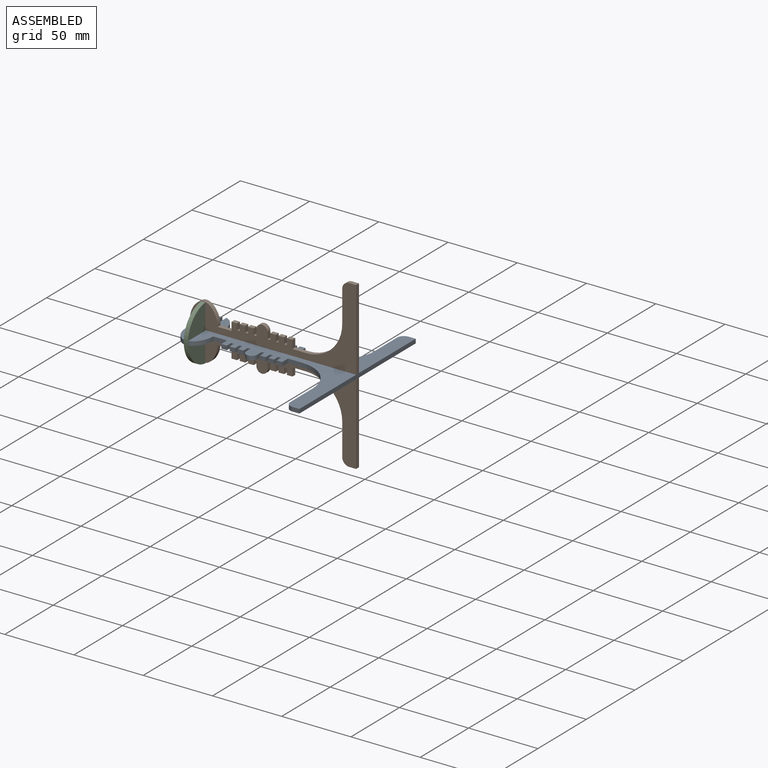
[diagram: assembled view]
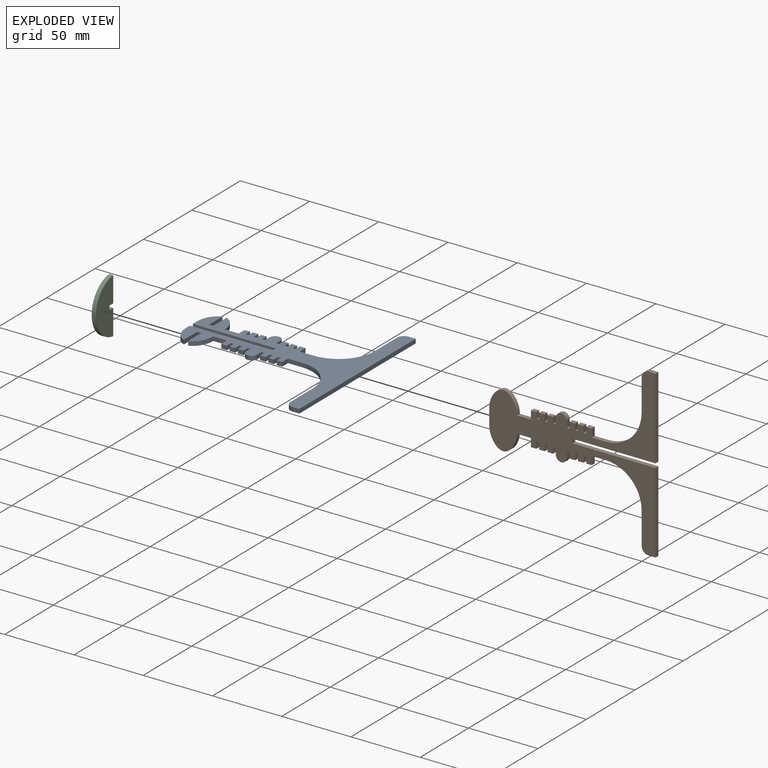
[diagram: exploded view]
GUIDED TOUR — MATED ASSEMBLY (Onshape document 8b54ce2afa1335f99e919482, AutoMate assembly 8b54ce2afa1335f99e919482_64a6fa9629a2439daae8d255_8fee52d90123e2ce2c0761cc_default)

This assembly has 3 components, labeled P0..P2 below (a component is one placed occurrence of a part; the same part can appear more than once), held together by 6 mates. A mate is a constraint between two components; its type names the relative motion it leaves free:
  PLANAR — leaves sliding in the plane through the listed point (normal = the listed direction) and rotation about that normal free.
Axis/direction vectors are unit vectors and 'through' points are millimeter coordinates, both in the assembly's world frame.

MATES
  1. PLANAR "Planar 5": P2 <-> P0, direction (1.000, 0.000, 0.000) through (82.81, 45.17, 60.92) mm
  2. PLANAR "Planar 2": P1 <-> P0, direction (1.000, 0.000, 0.000) through (131.31, 54.87, 60.92) mm
  3. PLANAR "Planar 4": P0 <-> P1, direction (0.000, -1.000, 0.000) through (101.31, 56.37, 60.92) mm
  4. PLANAR "Planar 1": P1 <-> P0, direction (0.000, 0.000, 1.000) through (161.31, 54.87, 59.42) mm
  5. PLANAR "Planar 3": P0 <-> P2, direction (0.000, -1.000, 0.000) through (81.31, 48.87, 60.92) mm
  6. PLANAR "Planar 6": P2 <-> P0, direction (0.000, 0.000, 1.000) through (81.31, 50.87, 59.42) mm

ASSEMBLY ORDER
  1. P0 — the base component [order heuristic]
  2. P1 — core [order heuristic]
  3. P2 [order verified]
Order-tag legend:
  [order verified] — this step's position reverses a verified removal order: the component was checked to insert without passing through the ones already placed.
  [order heuristic] — the first 2 components form the assembly's core: parts whose collision-free extraction could not be verified, listed in mate-graph order.

Of the 3 components, 2 carry the full construction recipe — the FeatureScript program that regenerates the part's solid from scratch; the rest are supplied as boundary geometry only.
Each toured component is shown spotlighted twice — in the assembled view, then in the exploded view, where a leader line traces a displaced component back to its assembled socket (saturated green if recipe-attached, orange if geometry-only; every other component desaturated gray) — followed by its recipe or geometry summary and the mates that hold it.
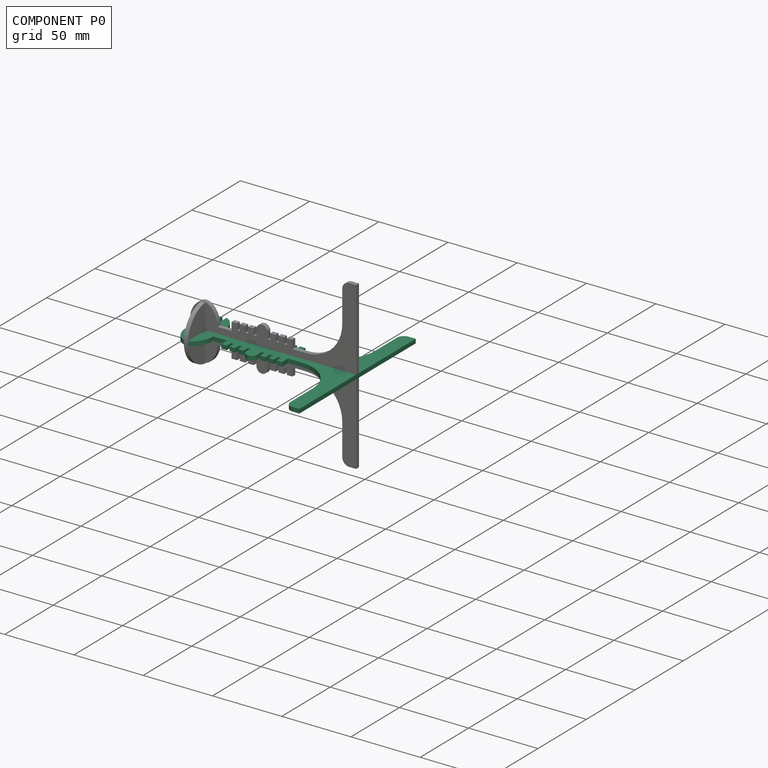
[diagram: component P0 — assembled]
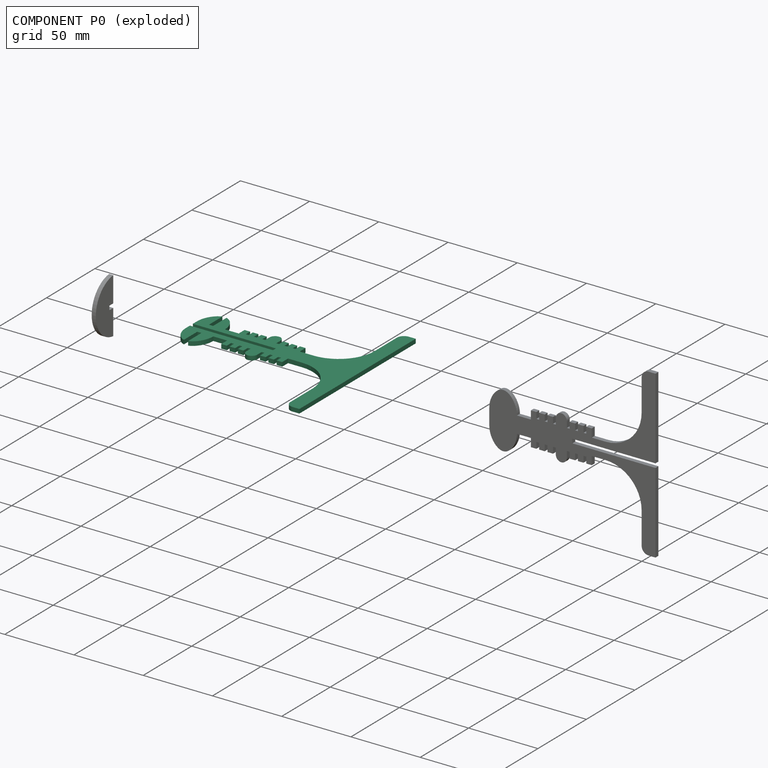
[diagram: component P0 — exploded]
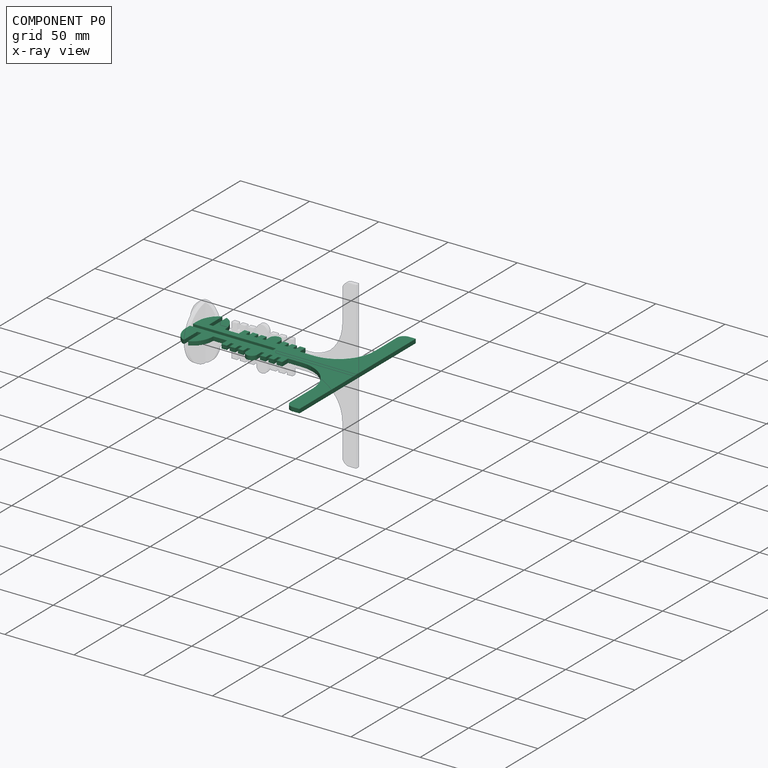
[diagram: component P0 — x-ray view]
COMPONENT P0 — recipe-attached (CADFS 00785815, mesh-verified: the recipe's output STEP matches this component's geometry to below the mesh-comparison resolution (tessellation chordal tolerance ~0.255 mm)).
Held by: PLANAR mate "Planar 5" to P2; PLANAR mate "Planar 2" to P1; PLANAR mate "Planar 4" to P1; PLANAR mate "Planar 1" to P1; PLANAR mate "Planar 3" to P2; PLANAR mate "Planar 6" to P2.
Construction recipe (FeatureScript — the CAD program that rebuilds this solid; sketch coordinates are in the units given by the * unit suffixes, e.g. mm):

FeatureScript 1511;
import(path : "onshape/std/geometry.fs", version : "1511.0");
import(path : "onshape/std/common.fs", version : "1511.0");
const mm = millimeter;
const VERTEX = EntityType.VERTEX;
const EDGE = EntityType.EDGE;
const FACE = EntityType.FACE;
const BODY = EntityType.BODY;
function v(x, y){return vector(x, y);}
function OD(order){return orderDisambiguation(order);}
function OSD(set){return originalSetDisambiguation(set);}
function TD(topology){return topologyDisambiguation(topology);}
function TDD(query){return trueDependencyDisambiguation(query);}
function sQuery(a, b, c) {return sketchEntityQuery(a, b, c);}

annotation { "Feature Type Name" : "Feature", "Feature Type Description" : "" }
export const myFeature = defineFeature(function(context is Context, id is Id, definition is map)
    precondition{}
    {
        {
            var Q0;
            Q0=qCreatedBy(makeId("Front.planeOp"),FACE);
            var sketch = newSketch(context, id + "F0", { "sketchPlane" : qUnion([Q0])});
            skLineSegment(sketch, "E0", {"start": v(-60, 0) * mm, "end": v(60, 0) * mm});
            skLineSegment(sketch, "E1", {"start": v(60, 0) * mm, "end": v(60, 5) * mm});
            skLineSegment(sketch, "E2", {"start": v(55, 10) * mm, "end": v(32, 10) * mm});
            skLineSegment(sketch, "E3", {"start": v(6, 36) * mm, "end": v(6, 100) * mm});
            skLineSegment(sketch, "E4", {"start": v(1.5, 120) * mm, "end": v(1.5, 60) * mm});
            skLineSegment(sketch, "E5", {"start": v(1.5, 60) * mm, "end": v(-1.5, 60) * mm});
            skLineSegment(sketch, "E6", {"start": v(-1.5, 60) * mm, "end": v(-1.5, 120) * mm});
            skLineSegment(sketch, "E7", {"start": v(-6, 100) * mm, "end": v(-6, 36) * mm});
            skLineSegment(sketch, "E8", {"start": v(-32, 10) * mm, "end": v(-55, 10) * mm});
            skLineSegment(sketch, "E9", {"start": v(-60, 5) * mm, "end": v(-60, 0) * mm});
            skLineSegment(sketch, "E10", {"start": v(-1.5, 120) * mm, "end": v(-6, 120) * mm});
            skLineSegment(sketch, "E11", {"start": v(1.5, 120) * mm, "end": v(6, 120) * mm});
            skFitSpline(sketch, "E12", {"points": [v(-6, 120) * mm, v(-20, 110) * mm, v(-6, 100) * mm], "startDerivative": vector(-42.6, 0) * mm, "endDerivative": vector(42.6, 0.15) * mm});
            skLineSegment(sketch, "E13", {"start": v(-20, 110) * mm, "end": v(-6, 110) * mm});
            skLineSegment(sketch, "E14", {"start": v(-6, 100) * mm, "end": v(-1.5, 100) * mm});
            skLineSegment(sketch, "E15", {"start": v(-6, 90) * mm, "end": v(-12, 90) * mm});
            skLineSegment(sketch, "E16", {"start": v(-12, 90) * mm, "end": v(-12, 86) * mm});
            skLineSegment(sketch, "E17", {"start": v(-12, 86) * mm, "end": v(-7.5, 86) * mm});
            skLineSegment(sketch, "E18", {"start": v(-7.5, 86) * mm, "end": v(-7.5, 84) * mm});
            skLineSegment(sketch, "E19", {"start": v(-7.5, 84) * mm, "end": v(-12, 84) * mm});
            skLineSegment(sketch, "E20", {"start": v(-12, 84) * mm, "end": v(-12, 80) * mm});
            skLineSegment(sketch, "E21", {"start": v(-12, 80) * mm, "end": v(-7.5, 80) * mm});
            skLineSegment(sketch, "E22", {"start": v(-7.5, 80) * mm, "end": v(-7.5, 78) * mm});
            skLineSegment(sketch, "E23", {"start": v(-7.5, 78) * mm, "end": v(-12, 78) * mm});
            skLineSegment(sketch, "E24", {"start": v(-12, 78) * mm, "end": v(-12, 74) * mm});
            skLineSegment(sketch, "E25", {"start": v(-12, 74) * mm, "end": v(-7.5, 74) * mm});
            skLineSegment(sketch, "E26", {"start": v(-7.5, 74) * mm, "end": v(-7.5, 72) * mm});
            skLineSegment(sketch, "E27", {"start": v(-7.5, 72) * mm, "end": v(-12, 72) * mm});
            skLineSegment(sketch, "E28", {"start": v(-12, 72) * mm, "end": v(-12, 68) * mm});
            skLineSegment(sketch, "E29", {"start": v(-12, 68) * mm, "end": v(-6, 68) * mm});
            skArc(sketch, "E30", {"start": v(-32, 10) * mm, "mid": v(-13.62, 17.62) * mm, "end": v(-6, 36) * mm});
            skLineSegment(sketch, "E31.MirrorCS", {"start": v(-12, 64) * mm, "end": v(-12, 68) * mm});
            skLineSegment(sketch, "E32.MirrorCS", {"start": v(-7.5, 64) * mm, "end": v(-12, 64) * mm});
            skLineSegment(sketch, "E33.MirrorCS", {"start": v(-7.5, 62) * mm, "end": v(-7.5, 64) * mm});
            skLineSegment(sketch, "E34.MirrorCS", {"start": v(-12, 62) * mm, "end": v(-7.5, 62) * mm});
            skLineSegment(sketch, "E35.MirrorCS", {"start": v(-12, 58) * mm, "end": v(-12, 62) * mm});
            skLineSegment(sketch, "E36.MirrorCS", {"start": v(-7.5, 58) * mm, "end": v(-12, 58) * mm});
            skLineSegment(sketch, "E37.MirrorCS", {"start": v(-7.5, 56) * mm, "end": v(-7.5, 58) * mm});
            skLineSegment(sketch, "E38.MirrorCS", {"start": v(-12, 56) * mm, "end": v(-7.5, 56) * mm});
            skLineSegment(sketch, "E39.MirrorCS", {"start": v(-12, 52) * mm, "end": v(-12, 56) * mm});
            skLineSegment(sketch, "E40.MirrorCS", {"start": v(-7.5, 52) * mm, "end": v(-12, 52) * mm});
            skLineSegment(sketch, "E41.MirrorCS", {"start": v(-7.5, 50) * mm, "end": v(-7.5, 52) * mm});
            skLineSegment(sketch, "E42.MirrorCS", {"start": v(-12, 50) * mm, "end": v(-7.5, 50) * mm});
            skLineSegment(sketch, "E43.MirrorCS", {"start": v(-12, 46) * mm, "end": v(-12, 50) * mm});
            skLineSegment(sketch, "E44.MirrorCS", {"start": v(-6, 46) * mm, "end": v(-12, 46) * mm});
            skPoint(sketch, "E45.visualSharp", {"position": v(-60, 10) * mm});
            skArc(sketch, "E45.filletArc", {"start": v(-55, 10) * mm, "mid": v(-58.54, 8.54) * mm, "end": v(-60, 5) * mm});
            skArc(sketch, "E46.MirrorCS", {"start": v(32, 10) * mm, "mid": v(13.62, 17.62) * mm, "end": v(6, 36) * mm});
            skFitSpline(sketch, "E47.MirrorCS", {"points": [v(6, 120) * mm, v(20, 110) * mm, v(6, 100) * mm], "startDerivative": vector(42.6, 0) * mm, "endDerivative": vector(-42.6, 0.15) * mm});
            skLineSegment(sketch, "E48.MirrorCS", {"start": v(6, 46) * mm, "end": v(12, 46) * mm});
            skLineSegment(sketch, "E49.MirrorCS", {"start": v(12, 46) * mm, "end": v(12, 50) * mm});
            skLineSegment(sketch, "E50.MirrorCS", {"start": v(12, 50) * mm, "end": v(7.5, 50) * mm});
            skLineSegment(sketch, "E51.MirrorCS", {"start": v(7.5, 50) * mm, "end": v(7.5, 52) * mm});
            skLineSegment(sketch, "E52.MirrorCS", {"start": v(7.5, 52) * mm, "end": v(12, 52) * mm});
            skLineSegment(sketch, "E53.MirrorCS", {"start": v(12, 52) * mm, "end": v(12, 56) * mm});
            skLineSegment(sketch, "E54.MirrorCS", {"start": v(12, 56) * mm, "end": v(7.5, 56) * mm});
            skLineSegment(sketch, "E55.MirrorCS", {"start": v(7.5, 56) * mm, "end": v(7.5, 58) * mm});
            skLineSegment(sketch, "E56.MirrorCS", {"start": v(7.5, 58) * mm, "end": v(12, 58) * mm});
            skLineSegment(sketch, "E57.MirrorCS", {"start": v(12, 58) * mm, "end": v(12, 62) * mm});
            skLineSegment(sketch, "E58.MirrorCS", {"start": v(12, 62) * mm, "end": v(7.5, 62) * mm});
            skLineSegment(sketch, "E59.MirrorCS", {"start": v(7.5, 62) * mm, "end": v(7.5, 64) * mm});
            skLineSegment(sketch, "E60.MirrorCS", {"start": v(7.5, 64) * mm, "end": v(12, 64) * mm});
            skLineSegment(sketch, "E61.MirrorCS", {"start": v(12, 64) * mm, "end": v(12, 68) * mm});
            skLineSegment(sketch, "E62.MirrorCS", {"start": v(12, 72) * mm, "end": v(12, 68) * mm});
            skLineSegment(sketch, "E63.MirrorCS", {"start": v(7.5, 72) * mm, "end": v(12, 72) * mm});
            skLineSegment(sketch, "E64.MirrorCS", {"start": v(7.5, 74) * mm, "end": v(7.5, 72) * mm});
            skLineSegment(sketch, "E65.MirrorCS", {"start": v(12, 74) * mm, "end": v(7.5, 74) * mm});
            skLineSegment(sketch, "E66.MirrorCS", {"start": v(12, 78) * mm, "end": v(12, 74) * mm});
            skLineSegment(sketch, "E67.MirrorCS", {"start": v(7.5, 78) * mm, "end": v(12, 78) * mm});
            skLineSegment(sketch, "E68.MirrorCS", {"start": v(7.5, 80) * mm, "end": v(7.5, 78) * mm});
            skLineSegment(sketch, "E69.MirrorCS", {"start": v(12, 80) * mm, "end": v(7.5, 80) * mm});
            skLineSegment(sketch, "E70.MirrorCS", {"start": v(12, 84) * mm, "end": v(12, 80) * mm});
            skLineSegment(sketch, "E71.MirrorCS", {"start": v(7.5, 84) * mm, "end": v(12, 84) * mm});
            skLineSegment(sketch, "E72.MirrorCS", {"start": v(7.5, 86) * mm, "end": v(7.5, 84) * mm});
            skLineSegment(sketch, "E73.MirrorCS", {"start": v(12, 86) * mm, "end": v(7.5, 86) * mm});
            skLineSegment(sketch, "E74.MirrorCS", {"start": v(12, 90) * mm, "end": v(12, 86) * mm});
            skLineSegment(sketch, "E75.MirrorCS", {"start": v(6, 90) * mm, "end": v(12, 90) * mm});
            skPoint(sketch, "E76.visualSharp", {"position": v(60, 0) * mm});
            skPoint(sketch, "E77.visualSharp", {"position": v(60, 10) * mm});
            skArc(sketch, "E77.filletArc", {"start": v(60, 5) * mm, "mid": v(58.54, 8.54) * mm, "end": v(55, 10) * mm});
            skArc(sketch, "E78", {"start": v(-12, 72) * mm, "mid": v(-16, 68) * mm, "end": v(-12, 64) * mm});
            skArc(sketch, "E79.MirrorCS", {"start": v(12, 72) * mm, "mid": v(16, 68) * mm, "end": v(12, 64) * mm});
            skLineSegment(sketch, "E80", {"start": v(-6, 111.5) * mm, "end": v(-6, 108.5) * mm});
            skLineSegment(sketch, "E81", {"start": v(-6, 108.5) * mm, "end": v(-19.8, 108.5) * mm});
            skLineSegment(sketch, "E82", {"start": v(-6, 111.5) * mm, "end": v(-19.8, 111.5) * mm});
            skLineSegment(sketch, "E83.MirrorCS", {"start": v(6, 108.5) * mm, "end": v(19.8, 108.5) * mm});
            skLineSegment(sketch, "E84.MirrorCS", {"start": v(6, 111.5) * mm, "end": v(6, 108.5) * mm});
            skLineSegment(sketch, "E85.MirrorCS", {"start": v(6, 111.5) * mm, "end": v(19.8, 111.5) * mm});
            skSolve(sketch);
        }
        {
            var Q0;
            Q0=makeQuery(id+"F0.imprint","IMPRINT",FACE,{"disambiguationData":[TD([[makeQuery(id+"F0.imprint","IMPRINT",EDGE,{"derivedFrom":sQuery(id+"F0.wireOp",EDGE,"E0")}),1.0]])]});
            var Q1;
            {var subQ1=sQuery(id+"F0.wireOp",EDGE,"E10");Q1=makeQuery(id+"F0.imprint","IMPRINT",FACE,{"disambiguationData":[TD([[makeQuery(id+"F0.imprint","IMPRINT",EDGE,{"derivedFrom":subQ1}),1.0]])]});}
            var Q2;
            {var subQ0=sQuery(id+"F0.wireOp",EDGE,"E15");Q2=makeQuery(id+"F0.imprint","IMPRINT",FACE,{"disambiguationData":[TD([[makeQuery(id+"F0.imprint","IMPRINT",EDGE,{"derivedFrom":subQ0}),1.0]])]});}
            var Q3;
            {var subQ0=sQuery(id+"F0.wireOp",EDGE,"E29");Q3=makeQuery(id+"F0.imprint","IMPRINT",FACE,{"disambiguationData":[TD([[makeQuery(id+"F0.imprint","IMPRINT",EDGE,{"derivedFrom":subQ0}),-1.0]])]});}
            var Q4;
            Q4=makeQuery(id+"F0.imprint","IMPRINT",FACE,{"disambiguationData":[TD([[makeQuery(id+"F0.imprint","IMPRINT",EDGE,{"derivedFrom":sQuery(id+"F0.wireOp",EDGE,"E28")}),-1.0]])]});
            var Q5;
            Q5=makeQuery(id+"F0.imprint","IMPRINT",FACE,{"disambiguationData":[TD([[makeQuery(id+"F0.imprint","IMPRINT",EDGE,{"derivedFrom":sQuery(id+"F0.wireOp",EDGE,"E61.MirrorCS")}),-1.0]])]});
            var Q6;
            {var subQ0=sQuery(id+"F0.wireOp",EDGE,"E48.MirrorCS");Q6=makeQuery(id+"F0.imprint","IMPRINT",FACE,{"disambiguationData":[TD([[makeQuery(id+"F0.imprint","IMPRINT",EDGE,{"derivedFrom":subQ0}),1.0]])]});}
            extrude(context, id + "F1", {"entities" : qUnion([Q0, Q1, Q2, Q3, Q4, Q5, Q6]), "depth" : 3 * mm, "offsetDistance" : 25 * mm});
        }
    });
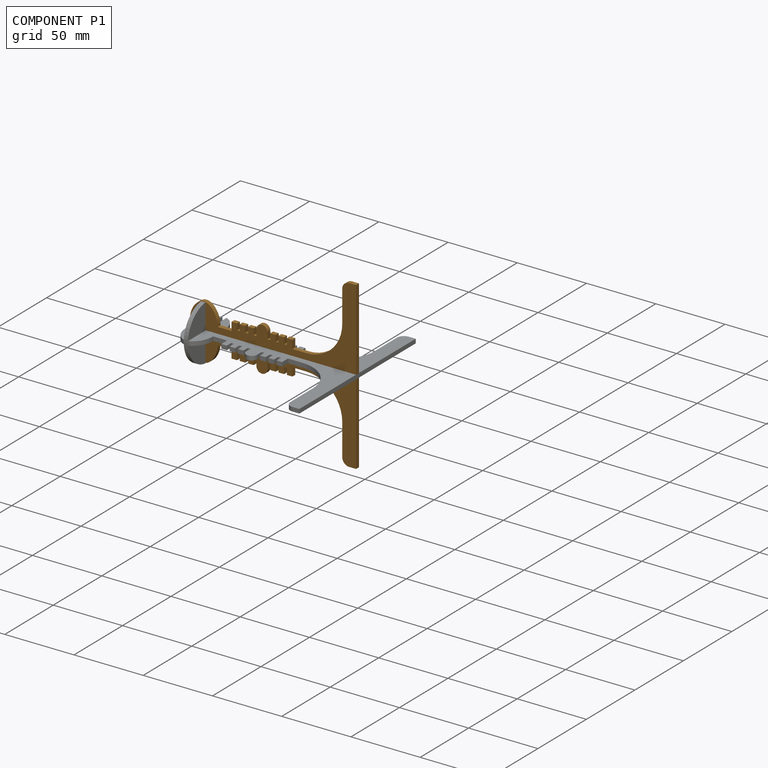
[diagram: component P1 — assembled]
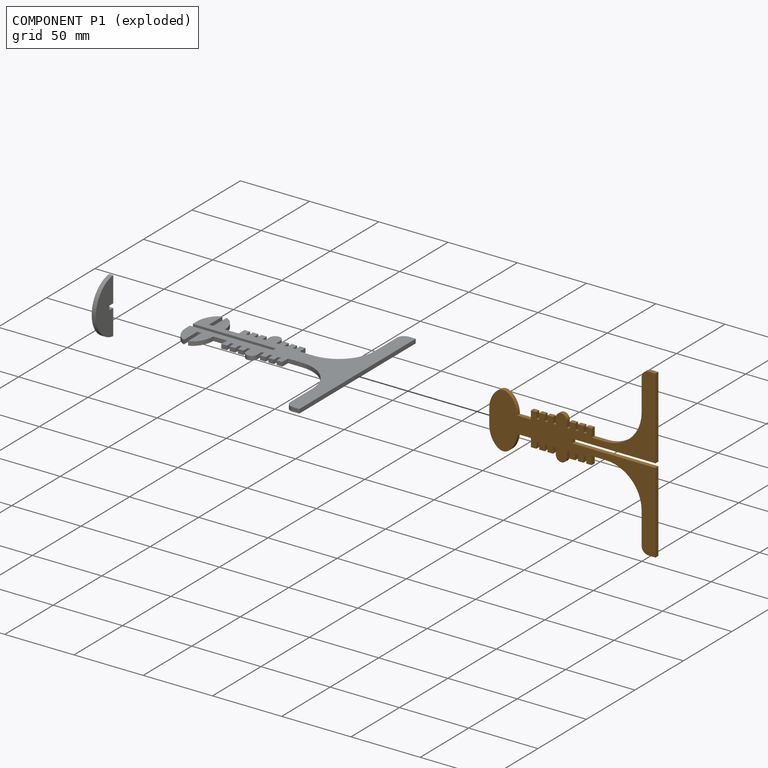
[diagram: component P1 — exploded]
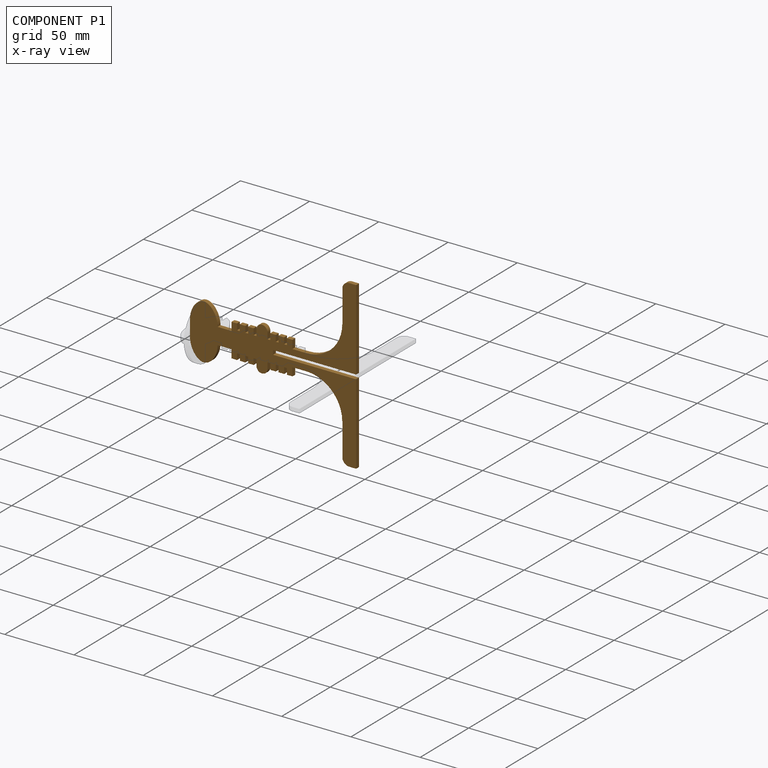
[diagram: component P1 — x-ray view]
COMPONENT P1 — geometry summary (no construction recipe available for this part):
  bounding box: 120.0 x 120.0 x 3.0 mm
  B-rep topology: 1 solid, 76 faces, 444 edges
  volume: 10554 mm^3 (24% of its bounding box)
  symmetry: 2-fold rotationally symmetric about the z axis; mirror-symmetric across its x mid-plane, y mid-plane
Held by: PLANAR mate "Planar 2" to P0; PLANAR mate "Planar 4" to P0; PLANAR mate "Planar 1" to P0.
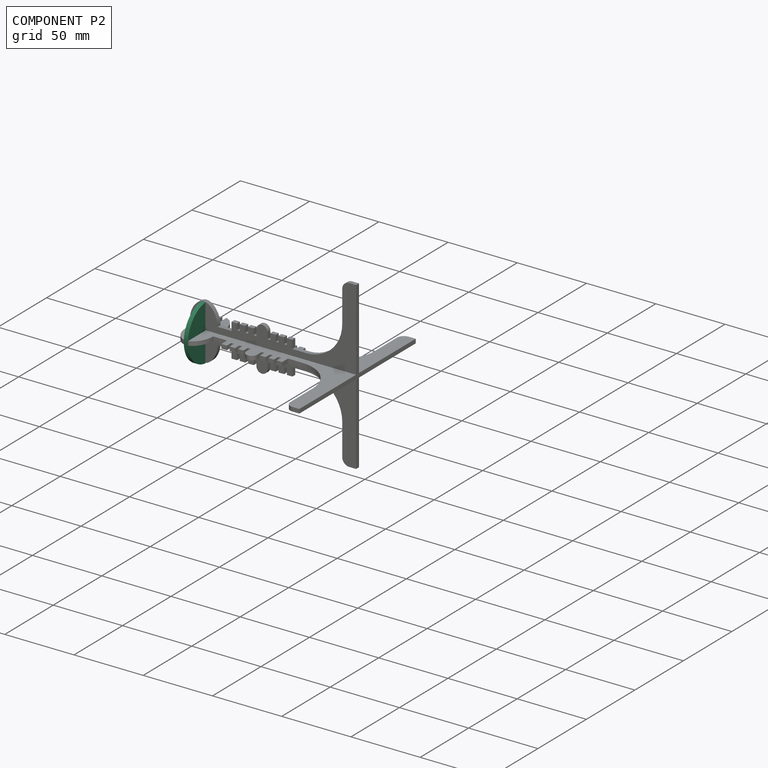
[diagram: component P2 — assembled]
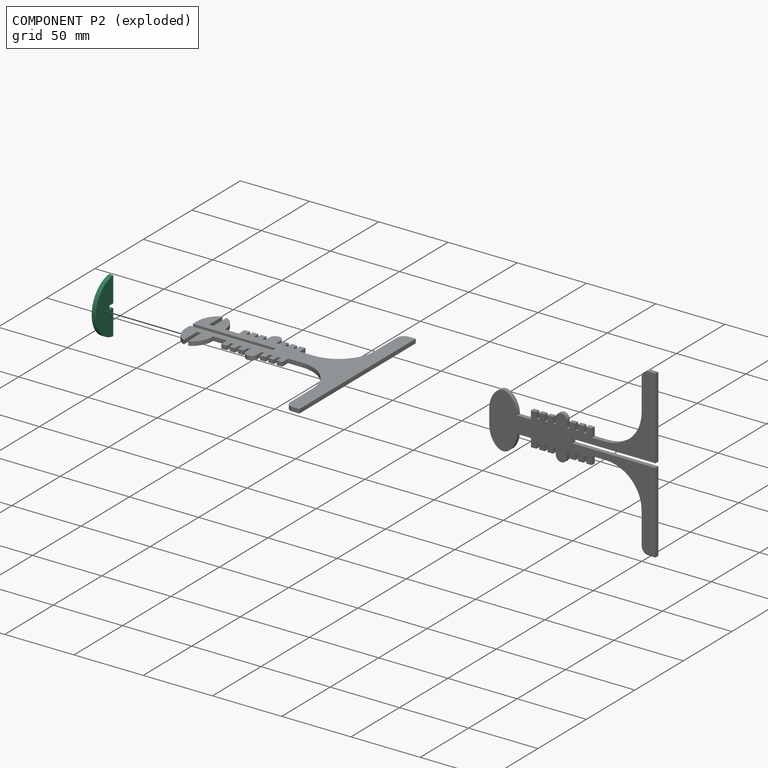
[diagram: component P2 — exploded]
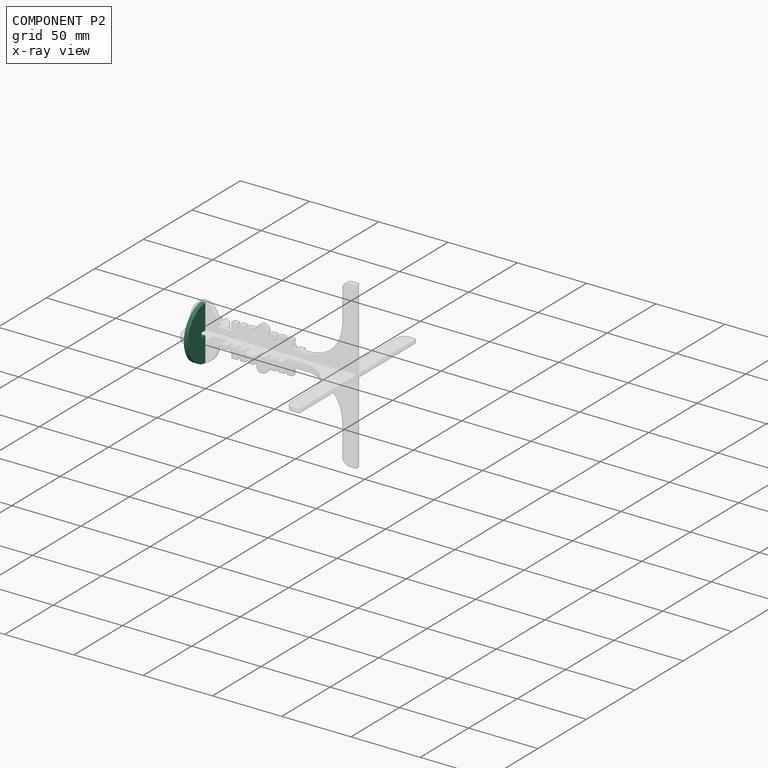
[diagram: component P2 — x-ray view]
COMPONENT P2 — recipe-attached (CADFS 00785817, mesh-verified: the recipe's output STEP matches this component's geometry to below the mesh-comparison resolution (tessellation chordal tolerance ~0.0657 mm)).
Held by: PLANAR mate "Planar 5" to P0; PLANAR mate "Planar 3" to P0; PLANAR mate "Planar 6" to P0.
Construction recipe (FeatureScript — the CAD program that rebuilds this solid; sketch coordinates are in the units given by the * unit suffixes, e.g. mm):

FeatureScript 1511;
import(path : "onshape/std/geometry.fs", version : "1511.0");
import(path : "onshape/std/common.fs", version : "1511.0");
const mm = millimeter;
const VERTEX = EntityType.VERTEX;
const EDGE = EntityType.EDGE;
const FACE = EntityType.FACE;
const BODY = EntityType.BODY;
function v(x, y){return vector(x, y);}
function OD(order){return orderDisambiguation(order);}
function OSD(set){return originalSetDisambiguation(set);}
function TD(topology){return topologyDisambiguation(topology);}
function TDD(query){return trueDependencyDisambiguation(query);}
function sQuery(a, b, c) {return sketchEntityQuery(a, b, c);}

annotation { "Feature Type Name" : "Feature", "Feature Type Description" : "" }
export const myFeature = defineFeature(function(context is Context, id is Id, definition is map)
    precondition{}
    {
        {
            var Q0;
            Q0=qCreatedBy(makeId("Top.planeOp"),FACE);
            var sketch = newSketch(context, id + "F0", { "sketchPlane" : qUnion([Q0])});
            skArc(sketch, "E0", {"start": v(-20, 0) * mm, "mid": v(0, -20) * mm, "end": v(20, 0) * mm});
            skLineSegment(sketch, "E1", {"start": v(-19.9, -2) * mm, "end": v(19.9, -2) * mm});
            skLineSegment(sketch, "E2", {"start": v(-1.5, 0) * mm, "end": v(-1.5, -6) * mm});
            skLineSegment(sketch, "E3", {"start": v(-1.5, -6) * mm, "end": v(1.5, -6) * mm});
            skLineSegment(sketch, "E4", {"start": v(1.5, -6) * mm, "end": v(1.5, 0) * mm});
            skSolve(sketch);
        }
        {
            var Q0;
            {var subQ0=sQuery(id+"F0.wireOp",EDGE,"E3");Q0=makeQuery(id+"F0.imprint","IMPRINT",FACE,{"disambiguationData":[TD([[makeQuery(id+"F0.imprint","IMPRINT",EDGE,{"derivedFrom":subQ0}),-1.0]])]});}
            extrude(context, id + "F1", {"entities" : qUnion([Q0]), "depth" : 3 * mm, "offsetDistance" : 25 * mm});
        }
    });
PROVENANCE & LICENSES
Assembly (occurrences, transforms, mates, per-part STEP geometry): AutoMate dataset, Zenodo record 7776208, CC0.
Construction recipes: CADFS (HuggingFace VladPyatov/CADFS, CC-BY-4.0, layered over the ABC dataset), FeatureScript reconstruction programs keyed by ABC model id.
Join: ABC meta listings map ABC model id -> Onshape documentId; within a shared document, parts are matched by geometric signature (bounding-box dims + volume at 0.1% relative tolerance, exact B-rep face/solid counts).
Verification: 2 of this assembly's 3 components carry a recipe attachment, and every attachment is mesh-verified: the CADFS STEP and the AutoMate member STEP were compared as meshes in their shared local frame (symmetric sampled-point-to-mesh distance); worst across the 2 attachments: below the mesh-comparison resolution (tessellation chordal tolerance ~0.255 mm) on a 170 mm part.
Renders: orthographic iso camera (az 35 / el 25); the floor grid conveys scale (grid pitch printed in each image; no ruler). In the exploded view each component is displaced by its stored offset vector: the offsets alone carry the explosion direction (mate normal/axis signs are not orientation cues and do not encode it), and separation distances are assigned per mate-chain, not proportionally to assembly-order depth.
